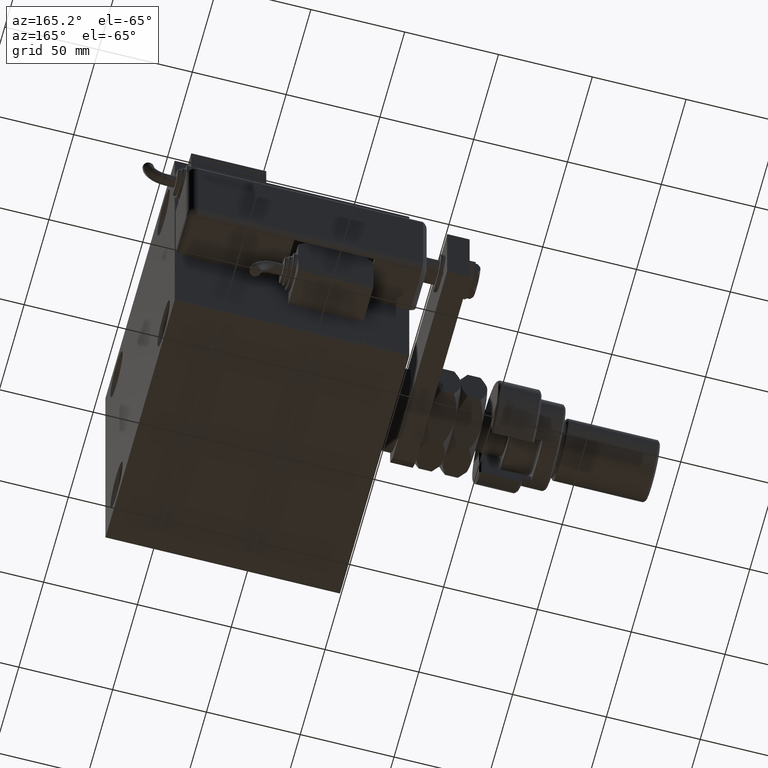
[diagram: clean part render]
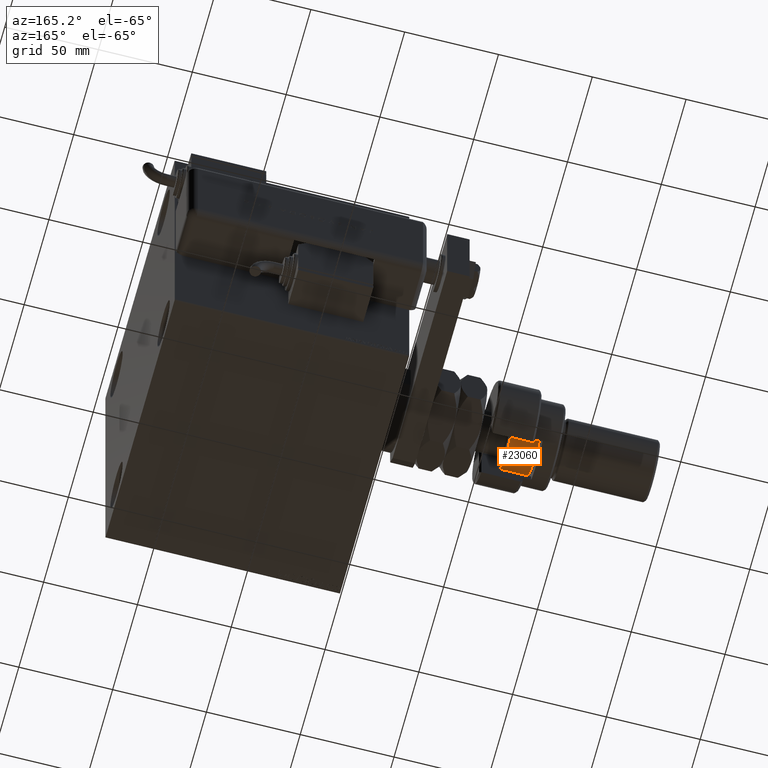
[diagram: same view with one face highlighted and labeled with its STEP entity id]
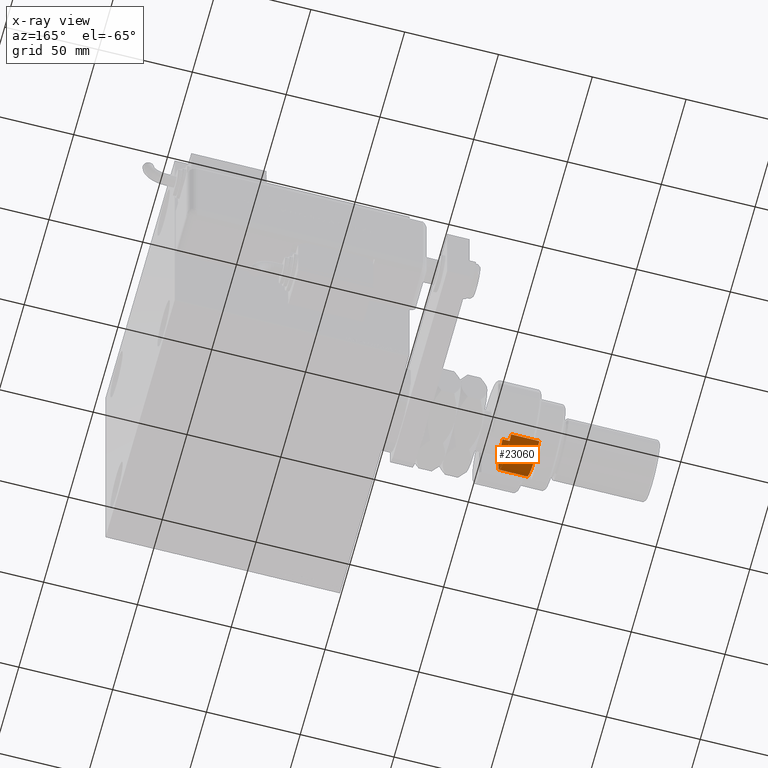
[diagram: x-ray of the same camera — body ghosted, the highlighted face saturated]
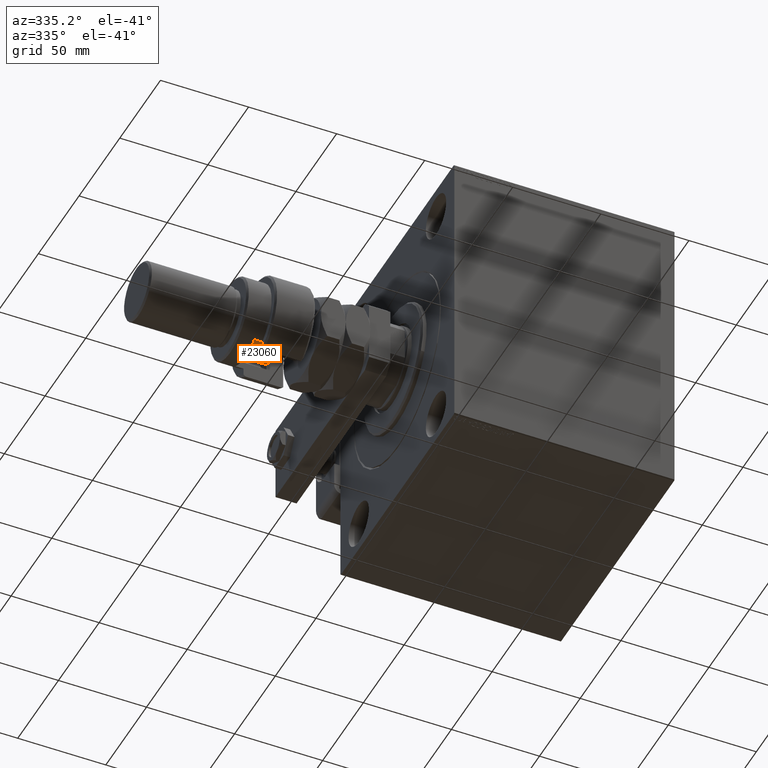
[diagram: same view with one face highlighted and labeled with its STEP entity id]
A machine part, auxiliary view. The second image highlights one B-rep face of the part: STEP entity #23060.
The next image is the same camera in x-ray: the body ghosted, the highlighted face saturated — about 0% of this face is hidden behind the body in this view.
A second angle (auxiliary view) of the same face is appended — the face is thin or edge-on in the first view.
In plain terms, the highlighted cylindrical surface (edge-blend (fillet) strip) has radius 17.5 mm, axis along (1, 0, -0).
Its self-contained STEP definition (entity closure, byte-faithful):
#907 = CARTESIAN_POINT ( 'NONE',  ( 17.50000000000000355, 2.143131898507868643E-15, 60.00000000000000000 ) ) ;
#1662 = ORIENTED_EDGE ( 'NONE', *, *, #45668, .T. ) ;
#4583 = AXIS2_PLACEMENT_3D ( 'NONE', #15495, #44650, #58624 ) ;
#6977 = EDGE_CURVE ( 'NONE', #28361, #25178, #16836, .T. ) ;
#8558 = CYLINDRICAL_SURFACE ( 'NONE', #4583, 17.50000000000000355 ) ;
#9626 = VERTEX_POINT ( 'NONE', #12092 ) ;
#10591 = EDGE_CURVE ( 'NONE', #9626, #36895, #24422, .T. ) ;
#12092 = CARTESIAN_POINT ( 'NONE',  ( 17.50000000000000355, 2.143131898507868643E-15, 59.50000000000000000 ) ) ;
#12136 = VECTOR ( 'NONE', #46320, 1000.000000000000000 ) ;
#15333 = CIRCLE ( 'NONE', #31512, 17.50000000000000355 ) ;
#15495 = CARTESIAN_POINT ( 'NONE',  ( 0.000000000000000000, 0.000000000000000000, 60.00000000000000000 ) ) ;
#16381 = DIRECTION ( 'NONE',  ( 1.000000000000000000, 0.000000000000000000, 0.000000000000000000 ) ) ;
#16836 = LINE ( 'NONE', #32048, #12136 ) ;
#17474 = ORIENTED_EDGE ( 'NONE', *, *, #10591, .F. ) ;
#21136 = CARTESIAN_POINT ( 'NONE',  ( 0.000000000000000000, 0.000000000000000000, 59.50000000000000000 ) ) ;
#22747 = CARTESIAN_POINT ( 'NONE',  ( 17.50000000000000355, 2.143131898507868643E-15, 44.50000000000000000 ) ) ;
#23060 = ADVANCED_FACE ( 'NONE', ( #51988 ), #8558, .T. ) ;
#24422 = LINE ( 'NONE', #907, #35425 ) ;
#24737 = CIRCLE ( 'NONE', #62215, 17.50000000000000355 ) ;
#25178 = VERTEX_POINT ( 'NONE', #26647 ) ;
#26647 = CARTESIAN_POINT ( 'NONE',  ( -17.50000000000000355, 0.000000000000000000, 44.50000000000000000 ) ) ;
#28361 = VERTEX_POINT ( 'NONE', #62246 ) ;
#30274 = EDGE_LOOP ( 'NONE', ( #17474, #1662, #62220, #52549 ) ) ;
#31512 = AXIS2_PLACEMENT_3D ( 'NONE', #45960, #35816, #54835 ) ;
#32048 = CARTESIAN_POINT ( 'NONE',  ( -17.50000000000000355, 0.000000000000000000, 60.00000000000000000 ) ) ;
#35425 = VECTOR ( 'NONE', #43756, 1000.000000000000000 ) ;
#35816 = DIRECTION ( 'NONE',  ( -0.000000000000000000, -0.000000000000000000, 1.000000000000000000 ) ) ;
#36895 = VERTEX_POINT ( 'NONE', #22747 ) ;
#43756 = DIRECTION ( 'NONE',  ( -0.000000000000000000, -0.000000000000000000, -1.000000000000000000 ) ) ;
#44650 = DIRECTION ( 'NONE',  ( -0.000000000000000000, -0.000000000000000000, -1.000000000000000000 ) ) ;
#45668 = EDGE_CURVE ( 'NONE', #9626, #28361, #24737, .T. ) ;
#45960 = CARTESIAN_POINT ( 'NONE',  ( 0.000000000000000000, 0.000000000000000000, 44.50000000000000000 ) ) ;
#46320 = DIRECTION ( 'NONE',  ( -0.000000000000000000, -0.000000000000000000, -1.000000000000000000 ) ) ;
#46579 = EDGE_CURVE ( 'NONE', #25178, #36895, #15333, .T. ) ;
#50305 = DIRECTION ( 'NONE',  ( 0.000000000000000000, 0.000000000000000000, -1.000000000000000000 ) ) ;
#51988 = FACE_OUTER_BOUND ( 'NONE', #30274, .T. ) ;
#52549 = ORIENTED_EDGE ( 'NONE', *, *, #46579, .T. ) ;
#54835 = DIRECTION ( 'NONE',  ( 1.000000000000000000, 0.000000000000000000, 0.000000000000000000 ) ) ;
#58624 = DIRECTION ( 'NONE',  ( -1.000000000000000000, 0.000000000000000000, 0.000000000000000000 ) ) ;
#62215 = AXIS2_PLACEMENT_3D ( 'NONE', #21136, #50305, #16381 ) ;
#62220 = ORIENTED_EDGE ( 'NONE', *, *, #6977, .T. ) ;
#62246 = CARTESIAN_POINT ( 'NONE',  ( -17.50000000000000355, 0.000000000000000000, 59.50000000000000000 ) ) ;